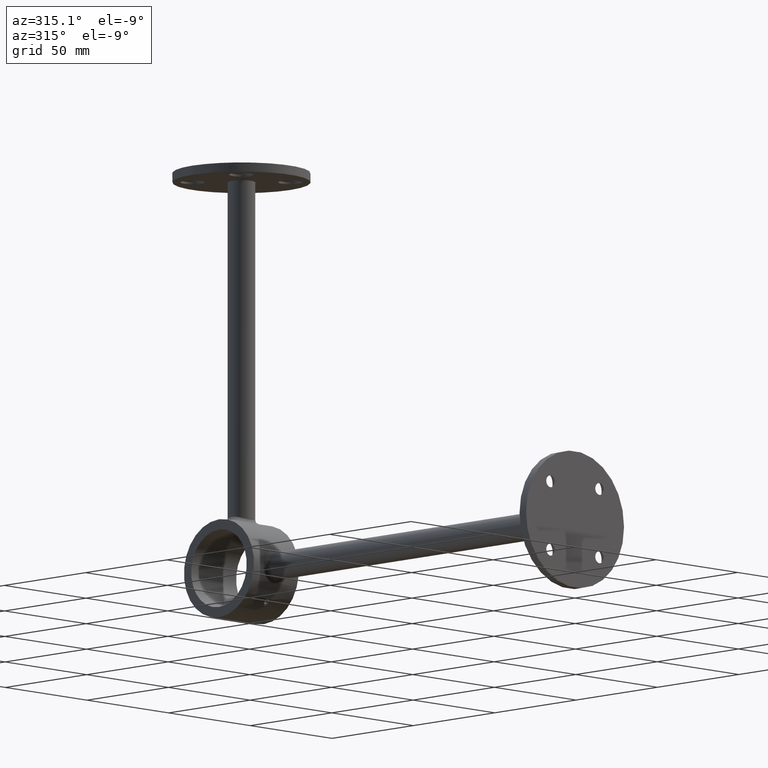
[diagram: clean part render]
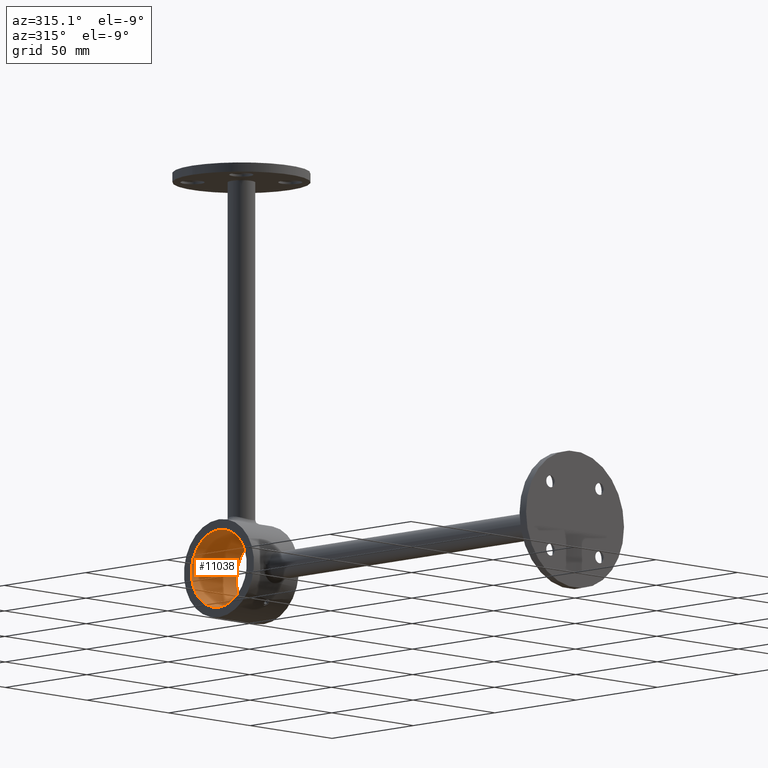
[diagram: same view with one face highlighted and labeled with its STEP entity id]
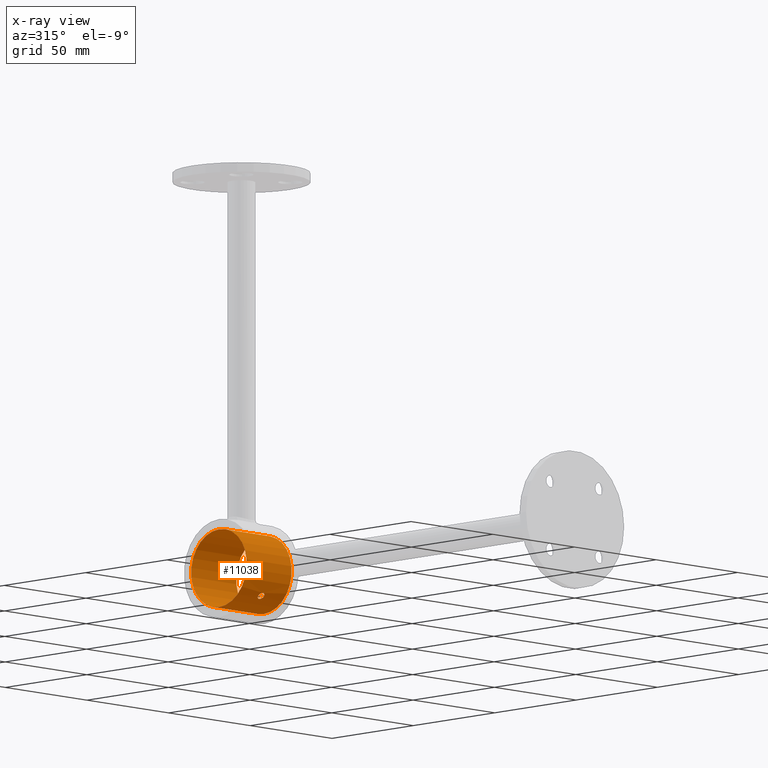
[diagram: x-ray of the same camera — body ghosted, the highlighted face saturated]
A machine part, auxiliary view. The second image highlights one B-rep face of the part: STEP entity #11038.
The next image is the same camera in x-ray: the body ghosted, the highlighted face saturated — about 0% of this face is hidden behind the body in this view.
In plain terms, the highlighted cylindrical surface (bore or boss wall) has radius 17.05 mm, axis along (-1, -0, 0).
Its self-contained STEP definition (entity closure, byte-faithful):
#4 = EDGE_CURVE ( 'NONE', #6850, #6850, #847, .T. ) ;
#526 = CARTESIAN_POINT ( 'NONE',  ( 11.74945419347142561, 192.6442744793343991, -1.596960995407962880 ) ) ;
#568 = CARTESIAN_POINT ( 'NONE',  ( 13.02626594862401177, 193.9989771883936100, 0.8266300687386652912 ) ) ;
#610 = CARTESIAN_POINT ( 'NONE',  ( 10.83288786609434950, 191.8337157678333256, 0.1083134474182212287 ) ) ;
#847 = CIRCLE ( 'NONE', #12400, 17.05000000000000071 ) ;
#953 = CARTESIAN_POINT ( 'NONE',  ( 13.16630951505700153, 194.1671428628583840, -0.2181506093585813544 ) ) ;
#998 = CARTESIAN_POINT ( 'NONE',  ( 13.03220200974419818, 194.0058620399479139, -0.8317632060890530754 ) ) ;
#1049 = CARTESIAN_POINT ( 'NONE',  ( 0.000000000000000000, 205.0000000000000000, 13.75000000000000000 ) ) ;
#1487 = CARTESIAN_POINT ( 'NONE',  ( 11.00180561085373299, 191.9743956871714943, 0.8283508647403350356 ) ) ;
#1534 = CARTESIAN_POINT ( 'NONE',  ( 12.94843681973148719, 193.9074758782687979, 1.005940446180556336 ) ) ;
#1615 = CARTESIAN_POINT ( 'NONE',  ( 10.99302455970887493, 191.9668609211200021, -0.8292564774212018985 ) ) ;
#1661 = CARTESIAN_POINT ( 'NONE',  ( 11.98067311516531497, 192.8683238714110360, 1.650058492843842428 ) ) ;
#1704 = CARTESIAN_POINT ( 'NONE',  ( 13.16630951505701219, 194.1671428628584124, 0.000000000000000000 ) ) ;
#2038 = CARTESIAN_POINT ( 'NONE',  ( 12.74584587880728392, 193.6750726554238327, -1.313244496442264708 ) ) ;
#2297 = EDGE_LOOP ( 'NONE', ( #6484 ) ) ;
#2331 = AXIS2_PLACEMENT_3D ( 'NONE', #11353, #5568, #7630 ) ;
#2470 = CARTESIAN_POINT ( 'NONE',  ( 11.25947813499904449, 192.1963890730584978, -1.241731093282350207 ) ) ;
#2549 = CARTESIAN_POINT ( 'NONE',  ( 13.15948002705808051, 194.1588271229956320, 0.2163150551978862413 ) ) ;
#3310 = AXIS2_PLACEMENT_3D ( 'NONE', #3590, #10437, #12714 ) ;
#3501 = CARTESIAN_POINT ( 'NONE',  ( 11.26151868034785331, 192.1981773719731450, 1.244225400780814006 ) ) ;
#3542 = CARTESIAN_POINT ( 'NONE',  ( 11.75009404925024370, 192.6448798385629289, 1.597221174666056953 ) ) ;
#3590 = CARTESIAN_POINT ( 'NONE',  ( 0.000000000000000000, 205.0000000000000000, -13.75000000000000000 ) ) ;
#3629 = CARTESIAN_POINT ( 'NONE',  ( 11.08722729635404924, 192.0462710603062533, -1.013342192009082821 ) ) ;
#3669 = CARTESIAN_POINT ( 'NONE',  ( 12.80215850890945184, 193.7388694410154812, -1.243660588150654389 ) ) ;
#3899 = ORIENTED_EDGE ( 'NONE', *, *, #7275, .T. ) ;
#3953 = FACE_OUTER_BOUND ( 'NONE', #6057, .T. ) ;
#4169 = CIRCLE ( 'NONE', #3310, 17.05000000000000071 ) ;
#4445 = CARTESIAN_POINT ( 'NONE',  ( 10.83279593743322167, 191.8336401315994237, -0.2148117874060324339 ) ) ;
#4475 = CARTESIAN_POINT ( 'NONE',  ( 11.45730200061956339, 192.3730153733473287, 1.431772052586058219 ) ) ;
#4569 = CARTESIAN_POINT ( 'NONE',  ( 11.09313706315858816, 192.0520887973633819, 1.006951932286199725 ) ) ;
#4945 = CARTESIAN_POINT ( 'NONE',  ( 13.13838865454113147, 194.1329809851245898, -0.4348822212158202638 ) ) ;
#5362 = ORIENTED_EDGE ( 'NONE', *, *, #4, .F. ) ;
#5381 = CARTESIAN_POINT ( 'NONE',  ( 12.75263463823858601, 193.6820468186857624, 1.318948988443727766 ) ) ;
#5424 = CARTESIAN_POINT ( 'NONE',  ( 11.14507328260594754, 192.0966745715443551, 1.090247526653282950 ) ) ;
#5473 = CARTESIAN_POINT ( 'NONE',  ( 10.89822902843231311, 191.8876838780662979, 0.5320783897656162775 ) ) ;
#5519 = CARTESIAN_POINT ( 'NONE',  ( 11.67527351919489220, 192.5742007824064501, 1.566061229669464705 ) ) ;
#5568 = DIRECTION ( 'NONE',  ( -0.000000000000000000, -0.000000000000000000, -1.000000000000000000 ) ) ;
#5611 = CARTESIAN_POINT ( 'NONE',  ( -17.05000000000000071, 205.0000000000000000, -13.75000000000000000 ) ) ;
#6057 = EDGE_LOOP ( 'NONE', ( #5362 ) ) ;
#6394 = CARTESIAN_POINT ( 'NONE',  ( 11.97797655142478490, 192.8656496822979136, -1.649895006530308628 ) ) ;
#6440 = CARTESIAN_POINT ( 'NONE',  ( 11.52679029879646144, 192.4363388224868459, -1.482104615983202534 ) ) ;
#6475 = CARTESIAN_POINT ( 'NONE',  ( 12.62992520748773728, 193.5445667682964768, 1.441862124007125878 ) ) ;
#6484 = ORIENTED_EDGE ( 'NONE', *, *, #10035, .T. ) ;
#6511 = CARTESIAN_POINT ( 'NONE',  ( 11.52873328804056108, 192.4381208922714279, 1.483407241684798983 ) ) ;
#6559 = CARTESIAN_POINT ( 'NONE',  ( 10.96207430257388715, 191.9410124043808423, 0.7318986011635396638 ) ) ;
#6648 = DIRECTION ( 'NONE',  ( -1.000000000000000000, 0.000000000000000000, 0.000000000000000000 ) ) ;
#6850 = VERTEX_POINT ( 'NONE', #11422 ) ;
#6863 = CARTESIAN_POINT ( 'NONE',  ( 12.42574347411814095, 193.3246666715694744, -1.566093073281831005 ) ) ;
#7010 = CYLINDRICAL_SURFACE ( 'NONE', #2331, 17.05000000000000071 ) ;
#7275 = EDGE_CURVE ( 'NONE', #10831, #10831, #4169, .T. ) ;
#7392 = CARTESIAN_POINT ( 'NONE',  ( 11.32317162791959575, 192.2525948733550649, -1.311450819521046807 ) ) ;
#7440 = CARTESIAN_POINT ( 'NONE',  ( 12.35959976579791864, 193.2534151813371182, 1.606483246887936644 ) ) ;
#7482 = CARTESIAN_POINT ( 'NONE',  ( 13.16630951505700864, 194.1671428628584124, 1.219727444046192488E-16 ) ) ;
#7518 = CARTESIAN_POINT ( 'NONE',  ( 10.87405349019568490, 191.8676768308673104, 0.4292332183165893933 ) ) ;
#7630 = DIRECTION ( 'NONE',  ( -1.000000000000000000, 0.000000000000000000, 0.000000000000000000 ) ) ;
#7744 = VERTEX_POINT ( 'NONE', #1704 ) ;
#7911 = CARTESIAN_POINT ( 'NONE',  ( 12.35375711760485551, 193.2484759423367109, -1.597724089482772225 ) ) ;
#7922 = DIRECTION ( 'NONE',  ( 0.000000000000000000, 0.000000000000000000, -1.000000000000000000 ) ) ;
#8358 = B_SPLINE_CURVE_WITH_KNOTS ( 'NONE', 3,
 ( #7482, #11375, #2549, #11297, #8446, #8486, #568, #1534, #10389, #5381, #6475, #7440, #9393, #1661, #11342, #3542, #5519, #6511, #4475, #12354, #3501, #5424, #4569, #1487, #6559, #5473, #7518, #12401, #610, #4445, #9481, #1615, #3629, #2470, #7392, #12271, #6440, #9359, #526, #12233, #6394, #9319, #8371, #7911, #6863, #11767, #12474, #2038, #3669, #9819, #998, #4945, #953, #11808 ),
 .UNSPECIFIED., .T., .F.,
 ( 4, 2, 2, 2, 2, 2, 2, 2, 2, 2, 2, 2, 2, 2, 2, 2, 2, 2, 2, 2, 2, 2, 2, 2, 2, 2, 4 ),
 ( 0.000000000000000000, 0.0003225666182554589689, 0.0006451332365109179378, 0.0009676998547663768525, 0.001290266473021835442, 0.001935399709532706434, 0.002580532946043577209, 0.002903099564299014765, 0.003225666182554451887, 0.003548232800809889443, 0.003870799419065326132, 0.004193366037320763254, 0.004515932655576200376, 0.004838499273831638366, 0.005161065892087074621, 0.005806199128597948865, 0.006451332365108823109, 0.006773898983364280181, 0.007096465601619737253, 0.007419032219875193457, 0.007741598838130650528, 0.008064165456386107600, 0.008386732074641562937, 0.008709298692897020008, 0.009031865311152477080, 0.009676998547663387754, 0.01032213178417429669 ),
 .UNSPECIFIED. ) ;
#8371 = CARTESIAN_POINT ( 'NONE',  ( 12.20737177601063017, 193.0964834220777675, -1.639481809796691225 ) ) ;
#8446 = CARTESIAN_POINT ( 'NONE',  ( 13.11231098633621350, 194.1017648189775855, 0.5320981331276398718 ) ) ;
#8486 = CARTESIAN_POINT ( 'NONE',  ( 13.05899130986290757, 194.0379301483617951, 0.7318841835523709483 ) ) ;
#9077 = EDGE_LOOP ( 'NONE', ( #3899 ) ) ;
#9319 = CARTESIAN_POINT ( 'NONE',  ( 12.13213295382934653, 193.0197775525741122, -1.650103484326240544 ) ) ;
#9359 = CARTESIAN_POINT ( 'NONE',  ( 11.67319717843106908, 192.5722510320955507, -1.565091211650415204 ) ) ;
#9393 = CARTESIAN_POINT ( 'NONE',  ( 12.20907497112043671, 193.0967498440450925, 1.649882277789789464 ) ) ;
#9481 = CARTESIAN_POINT ( 'NONE',  ( 10.86641391735482998, 191.8611129924750571, -0.4320103682062371719 ) ) ;
#9757 = FACE_BOUND ( 'NONE', #2297, .T. ) ;
#9819 = CARTESIAN_POINT ( 'NONE',  ( 12.95259860216251724, 193.9114480085895877, -1.015611163511388249 ) ) ;
#10035 = EDGE_CURVE ( 'NONE', #7744, #7744, #8358, .T. ) ;
#10389 = CARTESIAN_POINT ( 'NONE',  ( 12.90293291578987933, 193.8544791158810199, 1.090789596738703793 ) ) ;
#10437 = DIRECTION ( 'NONE',  ( 0.000000000000000000, 0.000000000000000000, -1.000000000000000000 ) ) ;
#10831 = VERTEX_POINT ( 'NONE', #5611 ) ;
#11038 = ADVANCED_FACE ( 'NONE', ( #9757, #3953, #12057 ), #7010, .F. ) ;
#11297 = CARTESIAN_POINT ( 'NONE',  ( 13.13264572975366384, 194.1263364008068493, 0.4272775339338259482 ) ) ;
#11342 = CARTESIAN_POINT ( 'NONE',  ( 11.90258981579348330, 192.7917216591878287, 1.639335548889083505 ) ) ;
#11353 = CARTESIAN_POINT ( 'NONE',  ( 0.000000000000000000, 205.0000000000000000, 13.75000000000000000 ) ) ;
#11375 = CARTESIAN_POINT ( 'NONE',  ( 13.16630951505701397, 194.1671428628584408, 0.1090753046792920233 ) ) ;
#11422 = CARTESIAN_POINT ( 'NONE',  ( -17.05000000000000071, 205.0000000000000000, 13.75000000000000000 ) ) ;
#11767 = CARTESIAN_POINT ( 'NONE',  ( 12.56190026201892529, 193.4712892732256364, -1.483396406793269229 ) ) ;
#11808 = CARTESIAN_POINT ( 'NONE',  ( 13.16630951505700864, 194.1671428628584124, 1.219727444046192488E-16 ) ) ;
#12057 = FACE_OUTER_BOUND ( 'NONE', #9077, .T. ) ;
#12233 = CARTESIAN_POINT ( 'NONE',  ( 11.90143314150262555, 192.7905972232524618, -1.639098604058563113 ) ) ;
#12271 = CARTESIAN_POINT ( 'NONE',  ( 11.45672775686031031, 192.3724926338044838, -1.431349480263458762 ) ) ;
#12354 = CARTESIAN_POINT ( 'NONE',  ( 11.32411240362192828, 192.2534322986436734, 1.312387289012685754 ) ) ;
#12400 = AXIS2_PLACEMENT_3D ( 'NONE', #1049, #7922, #6648 ) ;
#12401 = CARTESIAN_POINT ( 'NONE',  ( 10.84130108004542592, 191.8406253181245518, 0.2177142975533877534 ) ) ;
#12474 = CARTESIAN_POINT ( 'NONE',  ( 12.62582980443962200, 193.5414229384463738, -1.432786224462385682 ) ) ;
#12714 = DIRECTION ( 'NONE',  ( -1.000000000000000000, 0.000000000000000000, 0.000000000000000000 ) ) ;